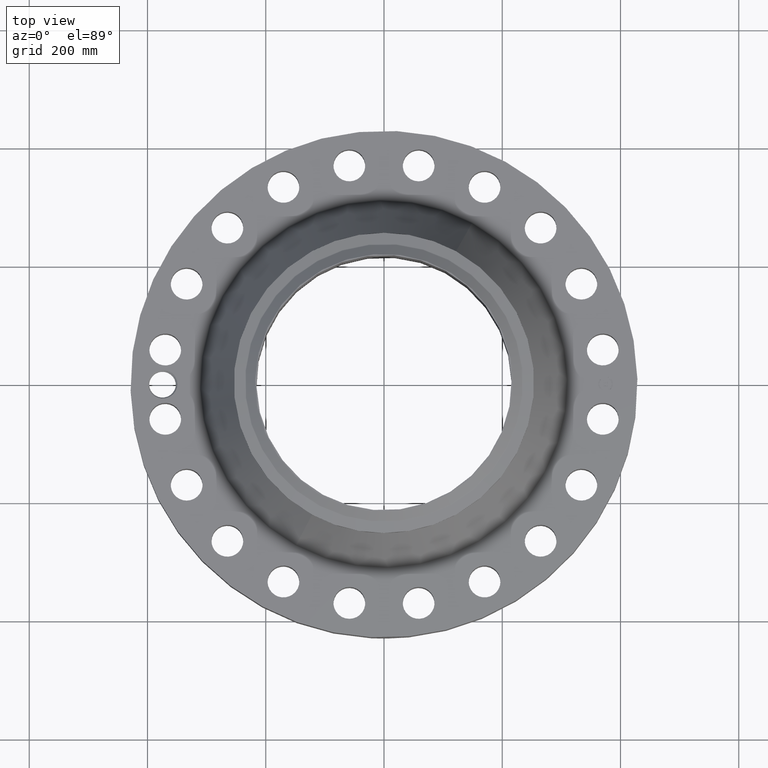
[diagram: clean part render]
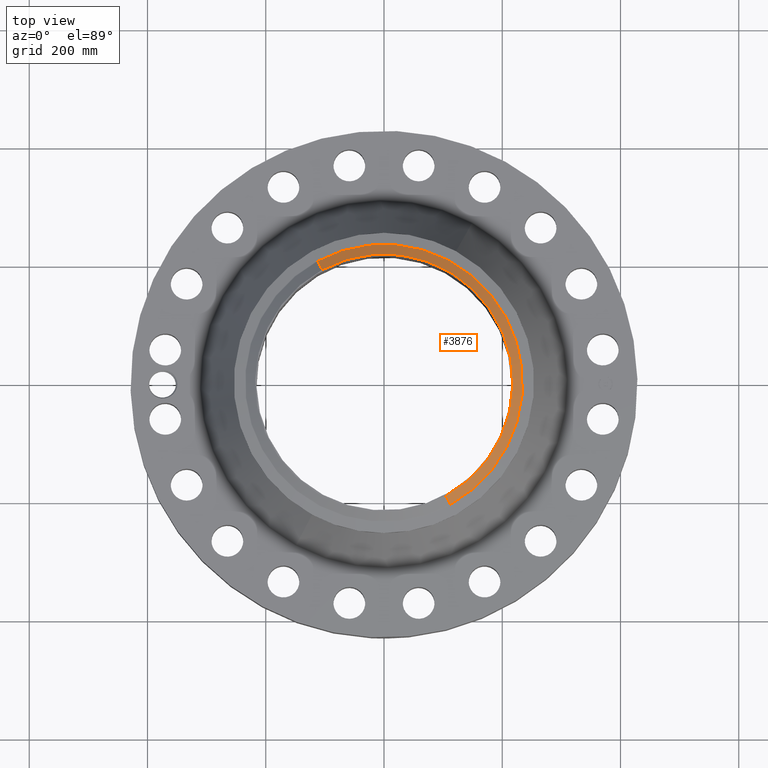
[diagram: same view with one face highlighted and labeled with its STEP entity id]
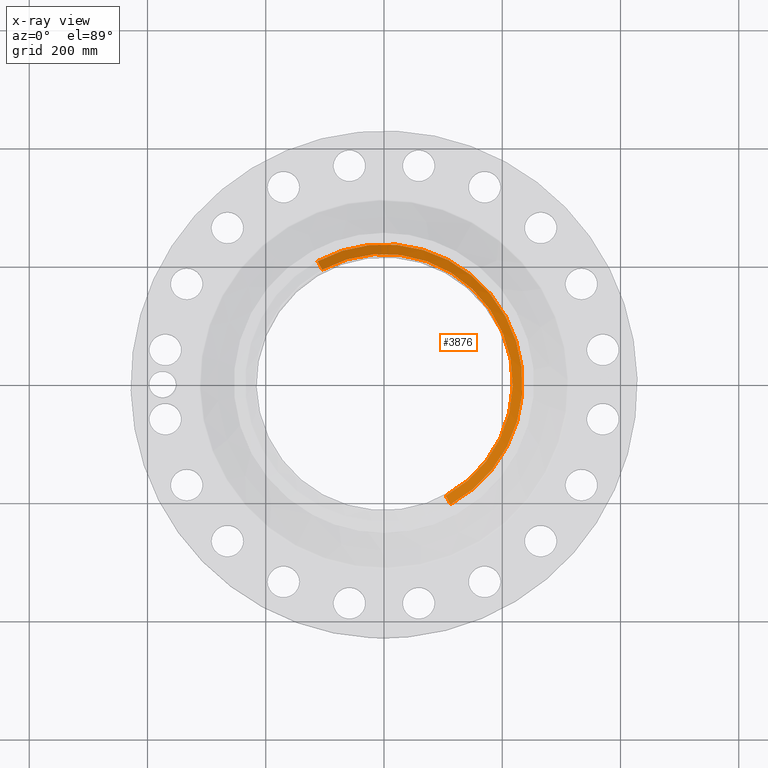
[diagram: x-ray of the same camera — body ghosted, the highlighted face saturated]
A machine part, top view. The second image highlights one B-rep face of the part: STEP entity #3876.
The next image is the same camera in x-ray: the body ghosted, the highlighted face saturated — about 0% of this face is hidden behind the body in this view.
In plain terms, the highlighted conical surface has half-angle 52.5 deg.
Its self-contained STEP definition (entity closure, byte-faithful):
#2992=AXIS2_PLACEMENT_3D('Circle Axis2P3D',#2990,#2991,$) ;
#3837=AXIS2_PLACEMENT_3D('Cone Axis2P3D',#3834,#3835,#3836) ;
#3867=AXIS2_PLACEMENT_3D('Circle Axis2P3D',#3865,#3866,$) ;
#2990=CARTESIAN_POINT('Axis2P3D Location',(0.,0.,10.)) ;
#2994=CARTESIAN_POINT('Vertex',(4.11286712056,-7.52855276522,10.)) ;
#2996=CARTESIAN_POINT('Vertex',(-4.11286712056,7.52855276522,10.)) ;
#3834=CARTESIAN_POINT('Axis2P3D Location',(0.,0.,10.)) ;
#3839=CARTESIAN_POINT('Line Origine',(-4.26780842311,7.81217091713,9.7520143726)) ;
#3843=CARTESIAN_POINT('Vertex',(-4.42274972566,8.09578906903,9.50402874517)) ;
#3850=CARTESIAN_POINT('Vertex',(4.42274972566,-8.09578906903,9.50402874517)) ;
#3853=CARTESIAN_POINT('Line Origine',(4.26780842311,-7.81217091713,9.7520143726)) ;
#3865=CARTESIAN_POINT('Axis2P3D Location',(0.,0.,9.50402874517)) ;
#2991=DIRECTION('Axis2P3D Direction',(0.,0.,-0.0393700787402)) ;
#3835=DIRECTION('Axis2P3D Direction',(-0.,-0.,-0.0393700787402)) ;
#3836=DIRECTION('Axis2P3D XDirection',(-0.0188750212049,0.0345504945626,0.)) ;
#3840=DIRECTION('Vector Direction',(-0.014974561121,0.02741075027,-0.023966985394)) ;
#3854=DIRECTION('Vector Direction',(0.014974561121,-0.02741075027,-0.023966985394)) ;
#3866=DIRECTION('Axis2P3D Direction',(0.,0.,-0.0393700787402)) ;
#3841=VECTOR('Line Direction',#3840,0.0393700787402) ;
#3855=VECTOR('Line Direction',#3854,0.0393700787402) ;
#3871=ORIENTED_EDGE('',*,*,#2998,.F.) ;
#3872=ORIENTED_EDGE('',*,*,#3857,.T.) ;
#3873=ORIENTED_EDGE('',*,*,#3869,.T.) ;
#3874=ORIENTED_EDGE('',*,*,#3845,.F.) ;
#3876=ADVANCED_FACE('PartBody',(#3875),#3838,.T.) ;
#2993=CIRCLE('generated circle',#2992,8.57874015751) ;
#3868=CIRCLE('generated circle',#3867,9.22510248106) ;
#3838=CONICAL_SURFACE('Cone',#3837,8.57874015751,0.916297857297) ;
#2998=EDGE_CURVE('',#2995,#2997,#2993,.F.) ;
#3845=EDGE_CURVE('',#2997,#3844,#3842,.T.) ;
#3857=EDGE_CURVE('',#2995,#3851,#3856,.T.) ;
#3869=EDGE_CURVE('',#3851,#3844,#3868,.F.) ;
#3870=EDGE_LOOP('',(#3871,#3872,#3873,#3874)) ;
#3875=FACE_OUTER_BOUND('',#3870,.T.) ;
#3842=LINE('Line',#3839,#3841) ;
#3856=LINE('Line',#3853,#3855) ;
#2995=VERTEX_POINT('',#2994) ;
#2997=VERTEX_POINT('',#2996) ;
#3844=VERTEX_POINT('',#3843) ;
#3851=VERTEX_POINT('',#3850) ;